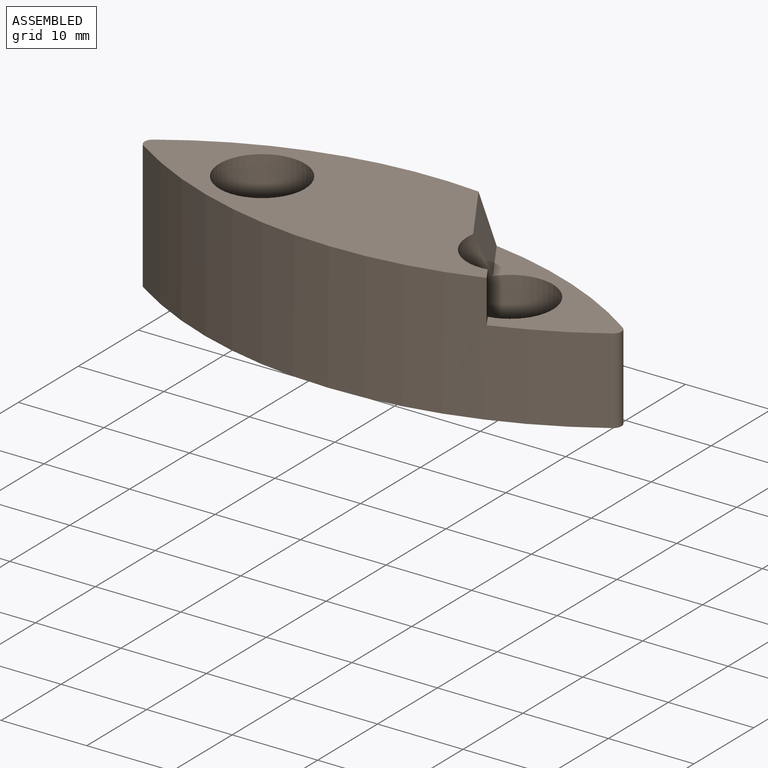
[diagram: assembled view]
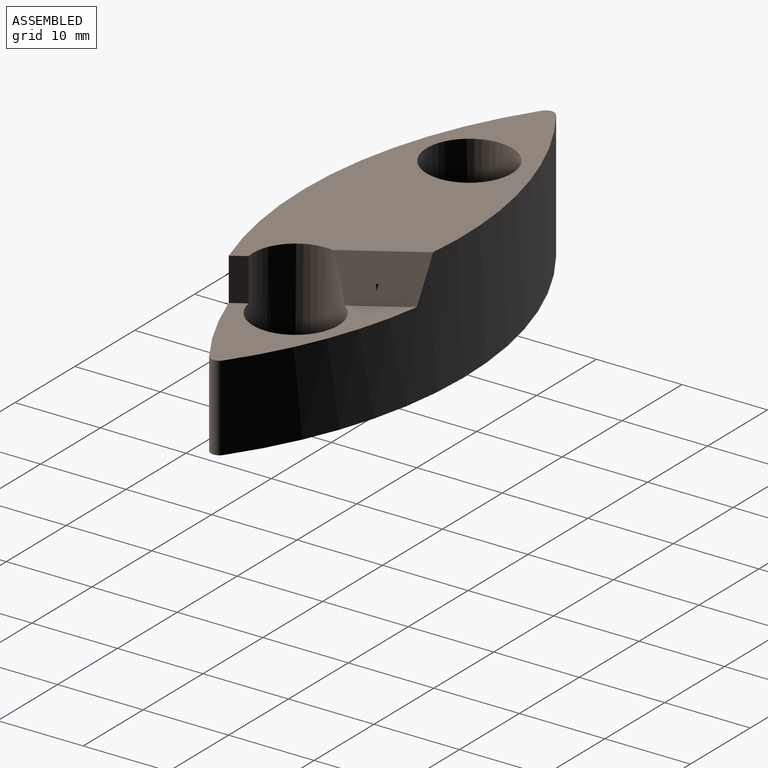
[diagram: assembled view, second angle]
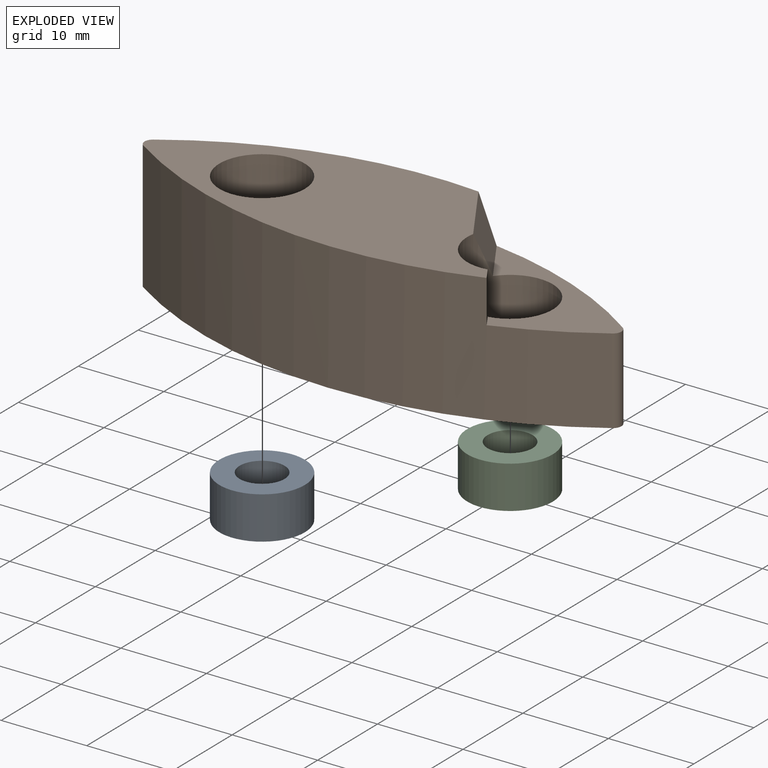
[diagram: exploded view]
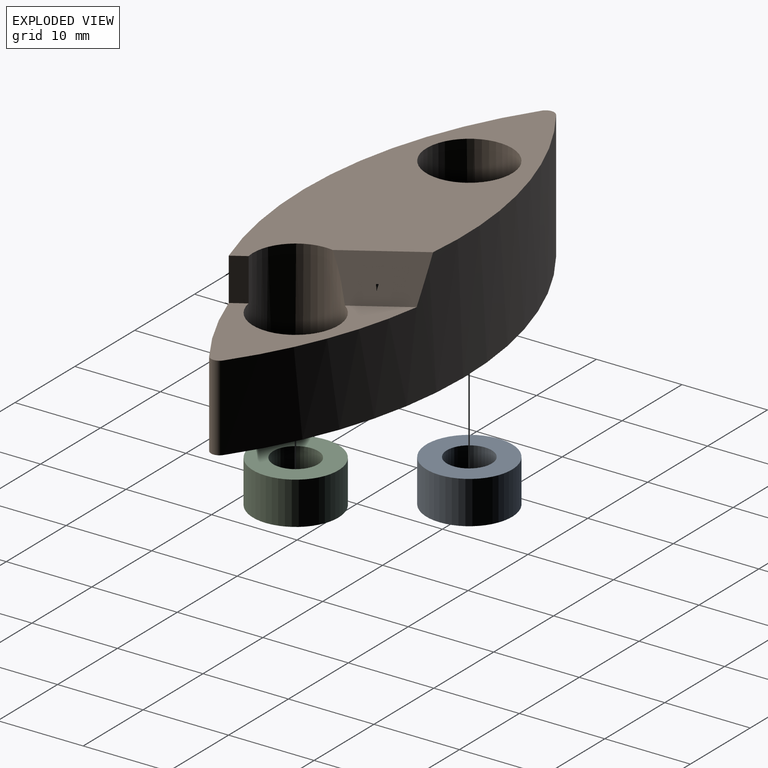
[diagram: exploded view, second angle]
ASSEMBLY  parts=3 mates=2
PART A: 4 faces, bbox 10x10x5 mm
  f0: cylinder r=2.62mm len=5.25mm, axis (0,0,-1), area 82.5mm2, adj f2,f3
  f1: cylinder r=5mm len=10mm, axis (0,0,-1), area 157.1mm2, adj f2,f3
  f2: plane 10x10mm, normal (0,0,1), area 56.9mm2, adj f0,f1
  f3: plane 10x10mm, normal (0,0,-1), area 56.9mm2, adj f0,f1
PART B: 28 faces, bbox 56x18.6x15 mm
  f0: plane 8.18x5.97mm, normal (0.8,0.5,0.34), area 43.4mm2, adj f1,f3,f4,f10,f16,f19,f27
  f1: cylinder r=5mm len=15mm, axis (0,0,-1), area 350.7mm2, adj f0,f4,f5,f11,f16,f17,f26,f27
  f2: cylinder r=1mm len=10mm, axis (0,0,-1), area 19.5mm2, adj f3,f5,f7,f27
  f3: cylinder r=48.3mm len=55.14mm, axis (0,0,-1), area 762.8mm2, adj f0,f2,f4,f5,f8,f27
  f4: plane 44.59x18.6mm, normal (0,0,1), area 463.3mm2, adj f0,f1,f3,f6,f7,f8,f26
  f5: plane 56x18.6mm, normal (0,0,-1), area 370.9mm2, adj f1,f2,f3,f6,f7,f8,f9,f11
  f6: cylinder r=5mm len=15mm, axis (0,0,-1), area 453.1mm2, adj f4,f5,f9,f14,f15
  f7: cylinder r=49.87mm len=55.1mm, axis (0,0,-1), area 814.5mm2, adj f2,f4,f5,f8,f26,f27
  f8: cylinder r=1mm len=15mm, axis (0,0,-1), area 29.2mm2, adj f3,f4,f5,f7
  f9: cylinder r=4mm len=12mm, axis (0,0,-1), area 72.9mm2, adj f5,f6,f12,f13,f15,f16,f18,f19
  f10: cylinder r=8mm len=9mm, axis (0,0,-1), area 46.3mm2, adj f0,f11,f13,f16,f17,f18,f19
  f11: cylinder r=4mm len=12mm, axis (0,0,-1), area 84.6mm2, adj f1,f5,f10,f13,f14,f17,f20,f21
  f12: cylinder r=8mm len=9mm, axis (0,0,-1), area 50.2mm2, adj f9,f13,f14,f15,f20,f21
  f13: plane 13.15x2.2mm, normal (0,0,-1), area 27.5mm2, adj f9,f10,f11,f12,f18,f20
  f14: cylinder r=46.87mm len=17.23mm, axis (0,0,-1), area 173.2mm2, adj f5,f6,f11,f12,f15,f21
  f15: plane 6.03x5.81mm, normal (0,0,-1), area 17.9mm2, adj f6,f9,f12,f14
  f16: cylinder r=45.3mm len=16.58mm, axis (0,0,-1), area 165mm2, adj f0,f1,f5,f9,f10,f17,f19
  f17: plane 5.77x5.45mm, normal (0,0,-1), area 16.7mm2, adj f1,f10,f11,f16
  f18: plane 11.92x5mm, normal (0,1,0), area 59.6mm2, adj f9,f10,f13,f19
  f19: plane 13.61x4.57mm, normal (0,0,-1), area 51.8mm2, adj f0,f9,f10,f16,f18
  f20: plane 11.82x5mm, normal (0,-1,0), area 59.1mm2, adj f11,f12,f13,f21
  f21: plane 13.93x5.2mm, normal (0,0,-1), area 59.4mm2, adj f11,f12,f14,f20
  f22: cylinder r=2mm len=5.5mm, axis (0,0,-1), area 69.1mm2, adj f5,f23
  f23: plane 4x4mm, normal (0,0,-1), area 12.6mm2, adj f22
  f24: cylinder r=2mm len=5.5mm, axis (0,0,-1), area 69.1mm2, adj f5,f25
  f25: plane 4x4mm, normal (0,0,-1), area 12.6mm2, adj f24
  f26: plane 5x1.62mm, normal (0.85,0.53,0), area 9.5mm2, adj f1,f4,f7,f27
  f27: plane 20.95x15.3mm, normal (0,0,1), area 91.4mm2, adj f0,f1,f2,f3,f7,f26
PART C: same geometry as A
PLACE A t=(40.03,13.35,-7.5)mm
PLACE B at identity
PLACE C t=(69.03,13.35,-7.5)mm
MATE fastened A.f0 <-> B.f6  axis (0,0,-1) through (-14.5,0,-7.5)mm
MATE fastened C.f0 <-> B.f1  axis (0,0,-1) through (14.5,0,-7.5)mm
